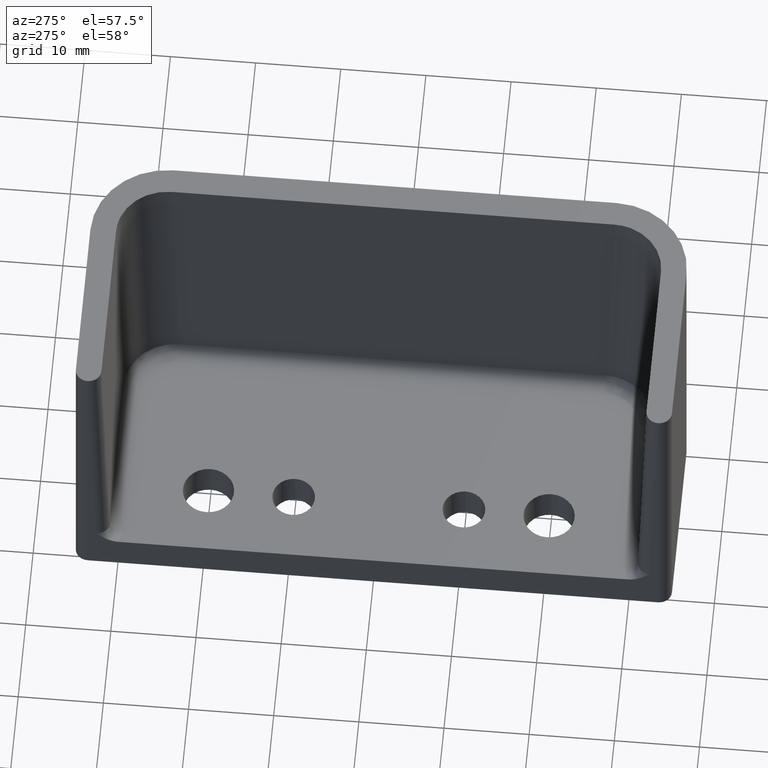
[diagram: clean part render]
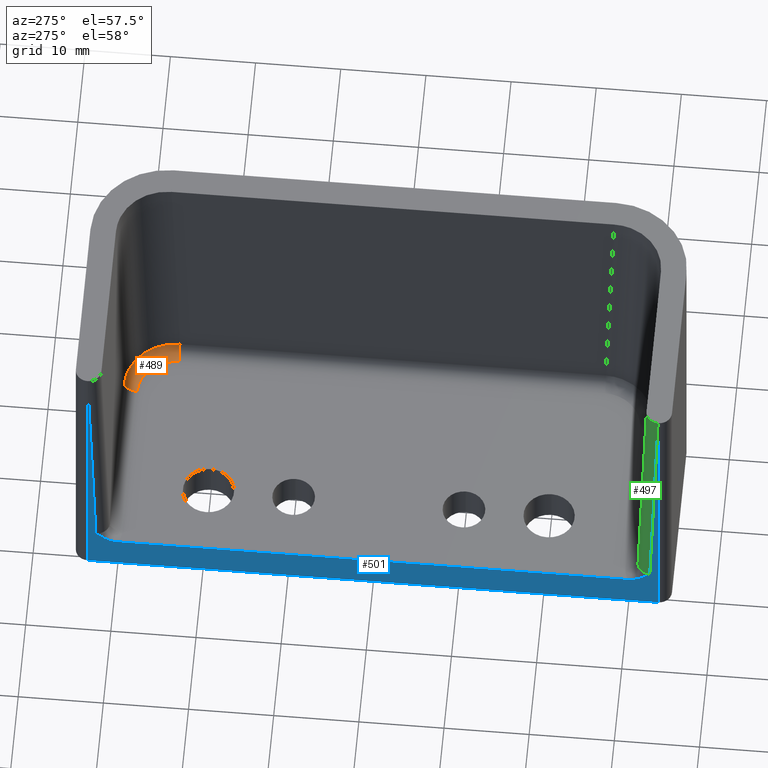
[diagram: same view with three faces highlighted in distinct colors, each labeled with its STEP entity id]
A machine part, auxiliary view with three faces highlighted in distinct colors.
Their STEP definitions:

[orange] entity #489 — the highlighted face is a freeform B-spline surface patch.
#98=ELLIPSE('',#534,6.00148626931317,6.);
#99=ELLIPSE('',#536,4.50198150160065,4.5);
#107=B_SPLINE_SURFACE_WITH_KNOTS('',3,3,((#839,#840,#841,#842,#843,#844),
(#845,#846,#847,#848,#849,#850),(#851,#852,#853,#854,#855,#856),(#857,#858,
#859,#860,#861,#862),(#863,#864,#865,#866,#867,#868)),.UNSPECIFIED.,.F.,
 .F.,.F.,(4,1,4),(4,1,1,4),(0.,0.571428571428571,1.),(-1.5707963267949,
-0.897597901025655,-0.448798950512827,4.31753398465338E-16),
 .UNSPECIFIED.);
#129=FACE_OUTER_BOUND('',#162,.T.);
#162=EDGE_LOOP('',(#352,#353,#354,#355));
#202=CIRCLE('',#535,1.5);
#203=CIRCLE('',#537,1.5);
#231=VERTEX_POINT('',#869);
#232=VERTEX_POINT('',#870);
#233=VERTEX_POINT('',#872);
#234=VERTEX_POINT('',#874);
#280=EDGE_CURVE('',#231,#232,#98,.F.);
#281=EDGE_CURVE('',#233,#231,#202,.T.);
#282=EDGE_CURVE('',#233,#234,#99,.T.);
#283=EDGE_CURVE('',#232,#234,#203,.T.);
#352=ORIENTED_EDGE('',*,*,#280,.F.);
#353=ORIENTED_EDGE('',*,*,#281,.F.);
#354=ORIENTED_EDGE('',*,*,#282,.T.);
#355=ORIENTED_EDGE('',*,*,#283,.F.);
#489=ADVANCED_FACE('',(#129),#107,.T.);
#534=AXIS2_PLACEMENT_3D('',#871,#621,#622);
#535=AXIS2_PLACEMENT_3D('',#873,#623,#624);
#536=AXIS2_PLACEMENT_3D('',#875,#625,#626);
#537=AXIS2_PLACEMENT_3D('',#876,#627,#628);
#621=DIRECTION('center_axis',(5.48799843229679E-18,0.00741472430841051,
0.99997251055388));
#622=DIRECTION('ref_axis',(7.39965385109322E-16,0.99997251055388,-0.00741472430841051));
#623=DIRECTION('center_axis',(1.,0.,0.));
#624=DIRECTION('ref_axis',(0.,0.,-1.));
#625=DIRECTION('center_axis',(0.,-3.80647894157195E-16,-1.));
#626=DIRECTION('ref_axis',(6.78171004619558E-16,1.,-3.80647894157195E-16));
#627=DIRECTION('center_axis',(0.,1.,0.));
#628=DIRECTION('ref_axis',(1.,0.,0.));
#839=CARTESIAN_POINT('Ctrl Pts',(14.2500000000002,25.0179408625162,-15.));
#840=CARTESIAN_POINT('Ctrl Pts',(14.2500000000002,26.0281831490895,-15.));
#841=CARTESIAN_POINT('Ctrl Pts',(13.6601807087021,27.7058796746699,-15.));
#842=CARTESIAN_POINT('Ctrl Pts',(11.7673118224092,29.2119376763742,-15.));
#843=CARTESIAN_POINT('Ctrl Pts',(10.4231984257694,29.5199223641169,-15.));
#844=CARTESIAN_POINT('Ctrl Pts',(9.75000000000018,29.5199223641169,-15.));
#845=CARTESIAN_POINT('Ctrl Pts',(14.698798950513,25.0179408625162,-15.));
#846=CARTESIAN_POINT('Ctrl Pts',(14.6968545454491,26.1292984137728,-14.9999204155213));
#847=CARTESIAN_POINT('Ctrl Pts',(14.045924755566,27.9712104055902,-15.0000191469644));
#848=CARTESIAN_POINT('Ctrl Pts',(11.9647802415859,29.6231601276288,-14.9999173946151));
#849=CARTESIAN_POINT('Ctrl Pts',(10.4893719940299,29.96024400112,-15.));
#850=CARTESIAN_POINT('Ctrl Pts',(9.75000000000018,29.96024400112,-15.));
#851=CARTESIAN_POINT('Ctrl Pts',(15.4759635654801,25.0179408625162,-14.6236079552006));
#852=CARTESIAN_POINT('Ctrl Pts',(15.4709249718625,26.3029695545747,-14.6270114344362));
#853=CARTESIAN_POINT('Ctrl Pts',(14.7123306226152,28.4310894768897,-14.6325487838022));
#854=CARTESIAN_POINT('Ctrl Pts',(12.3071010050758,30.3343734198822,-14.6375217015844));
#855=CARTESIAN_POINT('Ctrl Pts',(10.6031849994064,30.7233207568096,-14.6385054059621));
#856=CARTESIAN_POINT('Ctrl Pts',(9.75000000000018,30.7233207568096,-14.6385054059621));
#857=CARTESIAN_POINT('Ctrl Pts',(15.7500000000002,25.0179408625162,-13.8365992128846));
#858=CARTESIAN_POINT('Ctrl Pts',(15.747739508034,26.3648926322825,-13.8451812510496));
#859=CARTESIAN_POINT('Ctrl Pts',(14.9582185815682,28.5981517397101,-13.8593246815146));
#860=CARTESIAN_POINT('Ctrl Pts',(12.4353687991952,30.6005312800495,-13.8720297012888));
#861=CARTESIAN_POINT('Ctrl Pts',(10.6462912045679,31.0094651374265,-13.8745952415455));
#862=CARTESIAN_POINT('Ctrl Pts',(9.75000000000018,31.0094651374265,-13.8745952415455));
#863=CARTESIAN_POINT('Ctrl Pts',(15.7500000000002,25.0179408625162,-13.5));
#864=CARTESIAN_POINT('Ctrl Pts',(15.7500000000002,26.3646342112367,-13.5099856344083));
#865=CARTESIAN_POINT('Ctrl Pts',(14.9635742782694,28.6010707395811,-13.5265686505572));
#866=CARTESIAN_POINT('Ctrl Pts',(12.4397490965456,30.6087062549802,-13.5414551236365));
#867=CARTESIAN_POINT('Ctrl Pts',(10.6475979010258,31.019262154296,-13.5444993661277));
#868=CARTESIAN_POINT('Ctrl Pts',(9.75000000000018,31.019262154296,-13.5444993661277));
#869=CARTESIAN_POINT('',(9.75000000000018,31.0192621542959,-13.5444993661277));
#870=CARTESIAN_POINT('',(15.7500000000002,25.0179408625162,-13.5));
#871=CARTESIAN_POINT('Origin',(9.75000000000018,25.0179408625162,-13.5));
#872=CARTESIAN_POINT('',(9.75000000000018,29.5199223641169,-15.));
#873=CARTESIAN_POINT('Origin',(9.75000000000018,29.5199223641169,-13.5));
#874=CARTESIAN_POINT('',(14.2500000000002,25.0179408625162,-15.));
#875=CARTESIAN_POINT('Origin',(9.75000000000018,25.0179408625162,-15.));
#876=CARTESIAN_POINT('Origin',(14.2500000000002,25.0179408625162,-13.5));

[blue] entity #501 — the highlighted planar face has unit normal (-1, 0, 0).
#20=PLANE('',#558);
#25=B_SPLINE_CURVE_WITH_KNOTS('',3,(#821,#822,#823,#824,#825,#826,#827,
#828,#829,#830),.UNSPECIFIED.,.F.,.F.,(4,2,2,2,4),(0.,0.0716164799611134,
0.154741747433092,0.270847550066659,0.2715584243751),.UNSPECIFIED.);
#26=B_SPLINE_CURVE_WITH_KNOTS('',3,(#913,#914,#915,#916,#917,#918,#919,
#920,#921,#922),.UNSPECIFIED.,.F.,.F.,(4,2,2,2,4),(-0.000773015021683237,
0.,0.126252229330284,0.216641764230667,0.294516765560075),.UNSPECIFIED.);
#37=LINE('',#937,#70);
#39=LINE('',#943,#72);
#41=LINE('',#948,#74);
#48=LINE('',#972,#81);
#49=LINE('',#974,#82);
#50=LINE('',#975,#83);
#70=VECTOR('',#651,59.8440462666962);
#72=VECTOR('',#657,33.0145114171681);
#74=VECTOR('',#663,33.014511417168);
#81=VECTOR('',#688,39.);
#82=VECTOR('',#689,67.0000000000002);
#83=VECTOR('',#690,39.);
#141=FACE_OUTER_BOUND('',#178,.T.);
#178=EDGE_LOOP('',(#418,#419,#420,#421,#422,#423,#424,#425));
#227=VERTEX_POINT('',#819);
#228=VERTEX_POINT('',#820);
#237=VERTEX_POINT('',#910);
#238=VERTEX_POINT('',#912);
#242=VERTEX_POINT('',#941);
#243=VERTEX_POINT('',#947);
#251=VERTEX_POINT('',#971);
#252=VERTEX_POINT('',#973);
#274=EDGE_CURVE('',#227,#228,#25,.T.);
#286=EDGE_CURVE('',#237,#238,#26,.T.);
#295=EDGE_CURVE('',#238,#227,#37,.T.);
#298=EDGE_CURVE('',#242,#237,#39,.T.);
#300=EDGE_CURVE('',#228,#243,#41,.T.);
#312=EDGE_CURVE('',#251,#242,#48,.T.);
#313=EDGE_CURVE('',#252,#251,#49,.T.);
#314=EDGE_CURVE('',#252,#243,#50,.T.);
#418=ORIENTED_EDGE('',*,*,#286,.F.);
#419=ORIENTED_EDGE('',*,*,#298,.F.);
#420=ORIENTED_EDGE('',*,*,#312,.F.);
#421=ORIENTED_EDGE('',*,*,#313,.F.);
#422=ORIENTED_EDGE('',*,*,#314,.T.);
#423=ORIENTED_EDGE('',*,*,#300,.F.);
#424=ORIENTED_EDGE('',*,*,#274,.F.);
#425=ORIENTED_EDGE('',*,*,#295,.F.);
#501=ADVANCED_FACE('',(#141),#20,.T.);
#558=AXIS2_PLACEMENT_3D('',#970,#686,#687);
#651=DIRECTION('',(0.,-1.,3.80647894157195E-16));
#657=DIRECTION('',(0.,-0.0296662440851107,-0.999559860119384));
#663=DIRECTION('',(0.,-0.0296662440851107,0.999559860119384));
#686=DIRECTION('center_axis',(-1.,0.,0.));
#687=DIRECTION('ref_axis',(0.,-1.,0.));
#688=DIRECTION('',(0.,0.,1.));
#689=DIRECTION('',(0.,1.,0.));
#690=DIRECTION('',(0.,0.,1.));
#819=CARTESIAN_POINT('',(-11.2499999999998,-29.9220231333481,-15.));
#820=CARTESIAN_POINT('',(-11.2499999999998,-32.521243365184,-13.5));
#821=CARTESIAN_POINT('Ctrl Pts',(-11.2499999999998,-29.9220231333481,-15.));
#822=CARTESIAN_POINT('Ctrl Pts',(-11.2499999999998,-30.1607447332185,-15.));
#823=CARTESIAN_POINT('Ctrl Pts',(-11.2499999999998,-30.4265885932194,-14.9575272283627));
#824=CARTESIAN_POINT('Ctrl Pts',(-11.2499999999998,-31.0473788315982,-14.7270476454734));
#825=CARTESIAN_POINT('Ctrl Pts',(-11.2499999999998,-31.3377594955231,-14.5432146952591));
#826=CARTESIAN_POINT('Ctrl Pts',(-11.2499999999998,-31.9167362127609,-14.1034995150798));
#827=CARTESIAN_POINT('Ctrl Pts',(-11.2499999999998,-32.2180631062712,-13.8029105789129));
#828=CARTESIAN_POINT('Ctrl Pts',(-11.2499999999998,-32.5175976909493,-13.503642467137));
#829=CARTESIAN_POINT('Ctrl Pts',(-11.2499999999998,-32.5194205913323,-13.5018211703591));
#830=CARTESIAN_POINT('Ctrl Pts',(-11.2499999999998,-32.521243365184,-13.5));
#910=CARTESIAN_POINT('',(-11.2499999999998,32.521243365184,-13.5));
#912=CARTESIAN_POINT('',(-11.2499999999998,29.9220231333481,-15.));
#913=CARTESIAN_POINT('Ctrl Pts',(-11.2499999999998,32.521243365184,-13.5));
#914=CARTESIAN_POINT('Ctrl Pts',(-11.2499999999998,32.5194205497165,-13.5018212119383));
#915=CARTESIAN_POINT('Ctrl Pts',(-11.2499999999998,32.517597732566,-13.5036424255582));
#916=CARTESIAN_POINT('Ctrl Pts',(-11.2499999999998,32.2180631535357,-13.8029105316574));
#917=CARTESIAN_POINT('Ctrl Pts',(-11.2499999999998,31.9167362395338,-14.1034994947466));
#918=CARTESIAN_POINT('Ctrl Pts',(-11.2499999999998,31.3377594955228,-14.5432146952593));
#919=CARTESIAN_POINT('Ctrl Pts',(-11.2499999999998,31.0473788315979,-14.7270476454735));
#920=CARTESIAN_POINT('Ctrl Pts',(-11.2499999999998,30.4265885932195,-14.9575272283627));
#921=CARTESIAN_POINT('Ctrl Pts',(-11.2499999999998,30.1607447332187,-15.));
#922=CARTESIAN_POINT('Ctrl Pts',(-11.2499999999998,29.9220231333481,-15.));
#937=CARTESIAN_POINT('',(-11.2499999999998,1.2619680480237,-15.));
#941=CARTESIAN_POINT('',(-11.2499999273537,33.5003299596502,19.4999902070272));
#943=CARTESIAN_POINT('',(-11.2499999999998,32.6989132355013,-7.51367863716504));
#947=CARTESIAN_POINT('',(-11.2499999999998,-33.5003299596182,19.4999902070272));
#948=CARTESIAN_POINT('',(-11.2499999999998,-33.181398401248,8.74293960543761));
#970=CARTESIAN_POINT('Origin',(-11.2499999999998,33.5000000000001,0.));
#971=CARTESIAN_POINT('',(-11.2499999999998,33.5000000000001,-19.5));
#972=CARTESIAN_POINT('',(-11.2499999999998,33.5000000000001,0.));
#973=CARTESIAN_POINT('',(-11.2499999999998,-33.5000000000001,-19.5));
#974=CARTESIAN_POINT('',(-11.2499999999998,33.5000000000001,-19.5));
#975=CARTESIAN_POINT('',(-11.2499999999998,-33.5000000000001,0.));

[green] entity #497 — the highlighted cylindrical surface (edge-blend (fillet) strip) has radius 1.5 mm, axis along (0, 0.0297, -0.9996).
#41=LINE('',#948,#74);
#42=LINE('',#951,#75);
#74=VECTOR('',#663,33.014511417168);
#75=VECTOR('',#666,33.0590499724358);
#95=ELLIPSE('',#530,1.50264026015757,1.5);
#104=ELLIPSE('',#550,1.50066050053355,1.5);
#137=FACE_OUTER_BOUND('',#174,.T.);
#174=EDGE_LOOP('',(#392,#393,#394,#395));
#226=VERTEX_POINT('',#785);
#228=VERTEX_POINT('',#820);
#243=VERTEX_POINT('',#947);
#244=VERTEX_POINT('',#949);
#275=EDGE_CURVE('',#228,#226,#95,.T.);
#300=EDGE_CURVE('',#228,#243,#41,.T.);
#301=EDGE_CURVE('',#243,#244,#104,.T.);
#302=EDGE_CURVE('',#244,#226,#42,.T.);
#392=ORIENTED_EDGE('',*,*,#275,.F.);
#393=ORIENTED_EDGE('',*,*,#300,.T.);
#394=ORIENTED_EDGE('',*,*,#301,.T.);
#395=ORIENTED_EDGE('',*,*,#302,.T.);
#476=CYLINDRICAL_SURFACE('',#549,1.5);
#497=ADVANCED_FACE('',(#137),#476,.T.);
#530=AXIS2_PLACEMENT_3D('',#831,#611,#612);
#549=AXIS2_PLACEMENT_3D('',#946,#661,#662);
#550=AXIS2_PLACEMENT_3D('',#950,#664,#665);
#611=DIRECTION('center_axis',(-2.1258770863305E-15,-0.0296141181010282,
-0.999561405822123));
#612=DIRECTION('ref_axis',(1.75107019166763E-13,0.999561405822123,-0.0296141181010282));
#661=DIRECTION('center_axis',(0.,0.0296662440851107,-0.999559860119384));
#662=DIRECTION('ref_axis',(-0.707106781186548,0.706795555292293,0.0209772023649171));
#663=DIRECTION('',(0.,-0.0296662440851107,0.999559860119384));
#664=DIRECTION('center_axis',(0.,0.,-1.));
#665=DIRECTION('ref_axis',(1.74968119191846E-13,1.,0.));
#666=DIRECTION('',(0.,0.0296662440851107,-0.999559860119384));
#785=CARTESIAN_POINT('',(-9.74999999999981,-31.019262154296,-13.5444993661276));
#820=CARTESIAN_POINT('',(-11.2499999999998,-32.521243365184,-13.5));
#831=CARTESIAN_POINT('Origin',(-9.74999999999981,-32.521243365184,-13.5));
#946=CARTESIAN_POINT('Origin',(-9.74999999999981,-33.181398401248,8.74293960543761));
#947=CARTESIAN_POINT('',(-11.2499999999998,-33.5003299596182,19.4999902070272));
#948=CARTESIAN_POINT('',(-11.2499999999998,-33.181398401248,8.74293960543761));
#949=CARTESIAN_POINT('',(-9.74999999999981,-32.0000000000001,19.5));
#950=CARTESIAN_POINT('Origin',(-9.74999999999981,-33.5006605005337,19.5));
#951=CARTESIAN_POINT('',(-9.74999999999981,-31.682058611069,8.78743897156527));